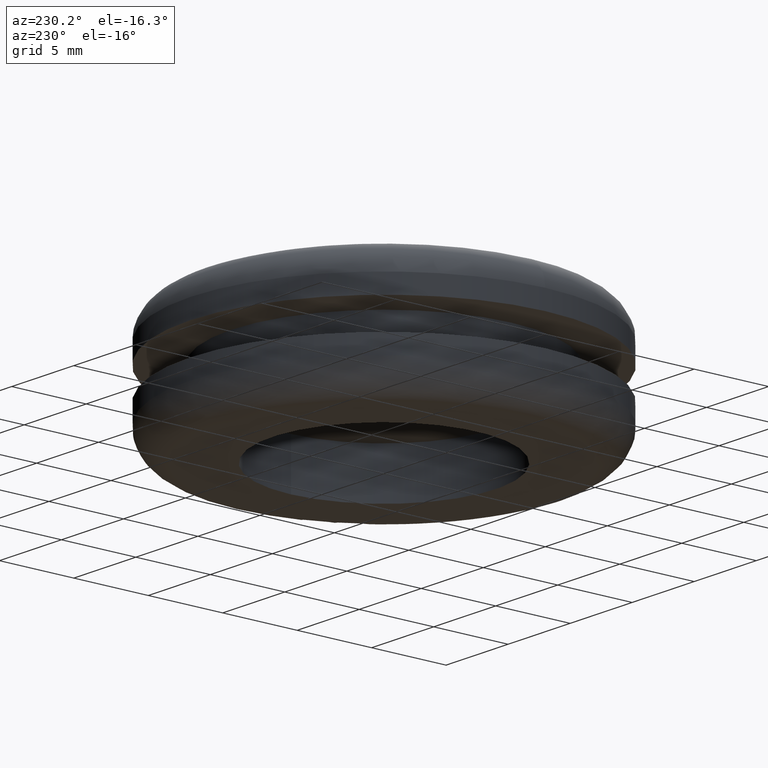
[diagram: clean part render]
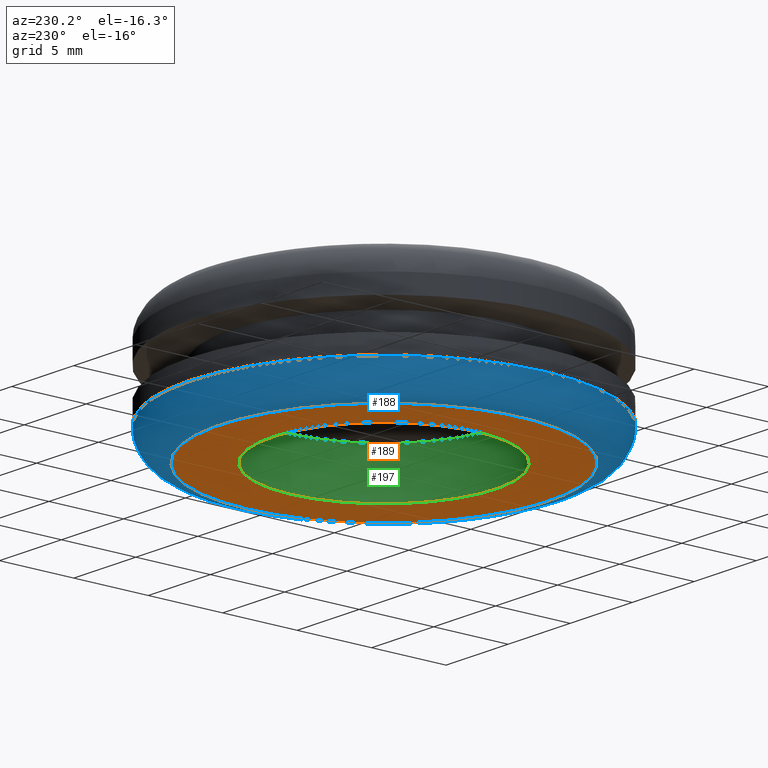
[diagram: same view with three faces highlighted in distinct colors, each labeled with its STEP entity id]
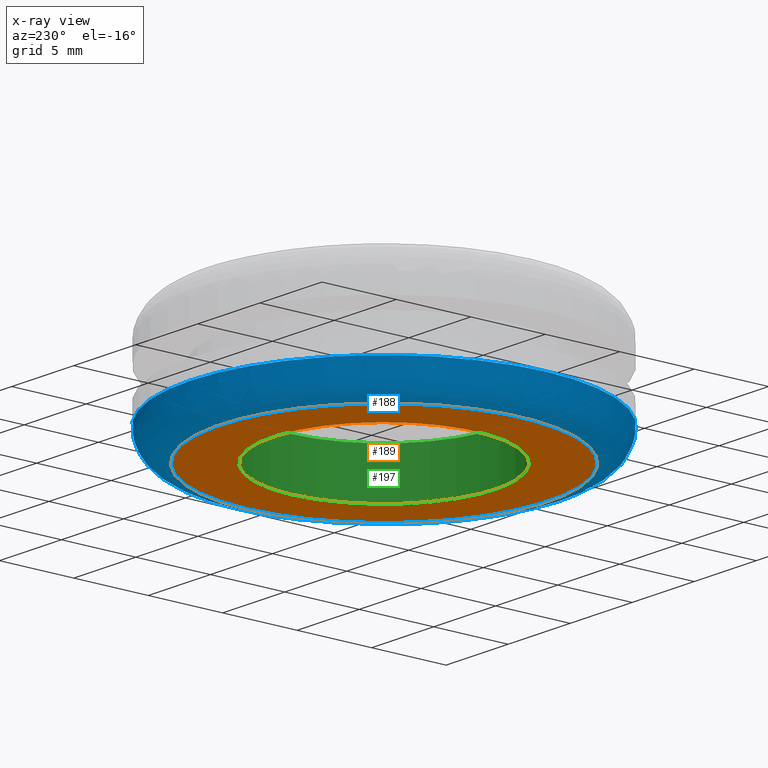
[diagram: x-ray of the same camera — body ghosted, the three highlighted faces saturated]
A machine part, auxiliary view with three faces highlighted in distinct colors.
The next image is the same camera in x-ray (body ghosted, the three faces saturated) — at least one of them is partly hidden behind the body in this view.
Their STEP definitions:

[orange] entity #189 — the highlighted planar face has unit normal (0, 0, 1).
#15=FACE_BOUND('',#54,.T.);
#40=FACE_OUTER_BOUND('',#53,.T.);
#53=EDGE_LOOP('',(#139));
#54=EDGE_LOOP('',(#140));
#69=CIRCLE('',#225,11.);
#72=CIRCLE('',#229,7.5);
#89=VERTEX_POINT('',#336);
#91=VERTEX_POINT('',#342);
#108=EDGE_CURVE('',#89,#89,#69,.T.);
#111=EDGE_CURVE('',#91,#91,#72,.T.);
#139=ORIENTED_EDGE('',*,*,#108,.F.);
#140=ORIENTED_EDGE('',*,*,#111,.T.);
#181=PLANE('',#228);
#189=ADVANCED_FACE('',(#40,#15),#181,.F.);
#225=AXIS2_PLACEMENT_3D('',#337,#268,#269);
#228=AXIS2_PLACEMENT_3D('',#341,#274,#275);
#229=AXIS2_PLACEMENT_3D('',#343,#276,#277);
#268=DIRECTION('center_axis',(0.,0.,1.));
#269=DIRECTION('ref_axis',(-1.,0.,0.));
#274=DIRECTION('center_axis',(0.,0.,1.));
#275=DIRECTION('ref_axis',(1.,0.,0.));
#276=DIRECTION('center_axis',(0.,0.,1.));
#277=DIRECTION('ref_axis',(-1.,0.,0.));
#336=CARTESIAN_POINT('',(11.,1.34711147906209E-15,-4.25));
#337=CARTESIAN_POINT('Origin',(0.,0.,-4.25));
#341=CARTESIAN_POINT('Origin',(-1.3267006990763E-16,0.,-4.25));
#342=CARTESIAN_POINT('',(7.5,9.18485099360515E-16,-4.25));
#343=CARTESIAN_POINT('Origin',(0.,0.,-4.25));

[blue] entity #188 — the highlighted toroidal blend (fillet) surface has major radius 11 mm and minor (blend) radius 2 mm.
#19=TOROIDAL_SURFACE('',#224,11.,2.);
#39=FACE_OUTER_BOUND('',#52,.T.);
#52=EDGE_LOOP('',(#135,#136,#137,#138));
#69=CIRCLE('',#225,11.);
#70=CIRCLE('',#226,2.);
#71=CIRCLE('',#227,13.);
#89=VERTEX_POINT('',#336);
#90=VERTEX_POINT('',#338);
#108=EDGE_CURVE('',#89,#89,#69,.T.);
#109=EDGE_CURVE('',#89,#90,#70,.T.);
#110=EDGE_CURVE('',#90,#90,#71,.T.);
#135=ORIENTED_EDGE('',*,*,#108,.T.);
#136=ORIENTED_EDGE('',*,*,#109,.T.);
#137=ORIENTED_EDGE('',*,*,#110,.T.);
#138=ORIENTED_EDGE('',*,*,#109,.F.);
#188=ADVANCED_FACE('',(#39),#19,.T.);
#224=AXIS2_PLACEMENT_3D('',#335,#266,#267);
#225=AXIS2_PLACEMENT_3D('',#337,#268,#269);
#226=AXIS2_PLACEMENT_3D('',#339,#270,#271);
#227=AXIS2_PLACEMENT_3D('',#340,#272,#273);
#266=DIRECTION('center_axis',(0.,0.,-1.));
#267=DIRECTION('ref_axis',(-1.,0.,0.));
#268=DIRECTION('center_axis',(0.,0.,1.));
#269=DIRECTION('ref_axis',(-1.,0.,0.));
#270=DIRECTION('center_axis',(-1.22464679914735E-16,-1.,0.));
#271=DIRECTION('ref_axis',(1.,-1.22464679914735E-16,0.));
#272=DIRECTION('center_axis',(0.,0.,-1.));
#273=DIRECTION('ref_axis',(-1.,0.,0.));
#335=CARTESIAN_POINT('Origin',(0.,0.,-2.25));
#336=CARTESIAN_POINT('',(11.,1.34711147906209E-15,-4.25));
#337=CARTESIAN_POINT('Origin',(0.,0.,-4.25));
#338=CARTESIAN_POINT('',(13.,-1.59204083889156E-15,-2.25));
#339=CARTESIAN_POINT('Origin',(11.,-1.34711147906209E-15,-2.25));
#340=CARTESIAN_POINT('Origin',(0.,0.,-2.25));

[green] entity #197 — the highlighted cylindrical surface (bore or boss wall) has radius 7.5 mm, axis along (0, 0, 1).
#25=LINE('',#380,#30);
#30=VECTOR('',#323,7.5);
#35=CYLINDRICAL_SURFACE('',#250,7.5);
#48=FACE_OUTER_BOUND('',#65,.T.);
#65=EDGE_LOOP('',(#175,#176,#177,#178));
#66=CIRCLE('',#219,7.5);
#72=CIRCLE('',#229,7.5);
#86=VERTEX_POINT('',#326);
#91=VERTEX_POINT('',#342);
#104=EDGE_CURVE('',#86,#86,#66,.T.);
#111=EDGE_CURVE('',#91,#91,#72,.T.);
#128=EDGE_CURVE('',#91,#86,#25,.T.);
#175=ORIENTED_EDGE('',*,*,#111,.F.);
#176=ORIENTED_EDGE('',*,*,#128,.T.);
#177=ORIENTED_EDGE('',*,*,#104,.T.);
#178=ORIENTED_EDGE('',*,*,#128,.F.);
#197=ADVANCED_FACE('',(#48),#35,.F.);
#219=AXIS2_PLACEMENT_3D('',#327,#255,#256);
#229=AXIS2_PLACEMENT_3D('',#343,#276,#277);
#250=AXIS2_PLACEMENT_3D('',#379,#321,#322);
#255=DIRECTION('center_axis',(0.,0.,1.));
#256=DIRECTION('ref_axis',(-1.,0.,0.));
#276=DIRECTION('center_axis',(0.,0.,1.));
#277=DIRECTION('ref_axis',(-1.,0.,0.));
#321=DIRECTION('center_axis',(0.,0.,1.));
#322=DIRECTION('ref_axis',(-1.,0.,0.));
#323=DIRECTION('',(0.,0.,1.));
#326=CARTESIAN_POINT('',(7.5,9.18485099360515E-16,-1.));
#327=CARTESIAN_POINT('Origin',(0.,0.,-1.));
#342=CARTESIAN_POINT('',(7.5,9.18485099360515E-16,-4.25));
#343=CARTESIAN_POINT('Origin',(0.,0.,-4.25));
#379=CARTESIAN_POINT('Origin',(0.,0.,0.));
#380=CARTESIAN_POINT('',(7.5,9.18485099360515E-16,0.));